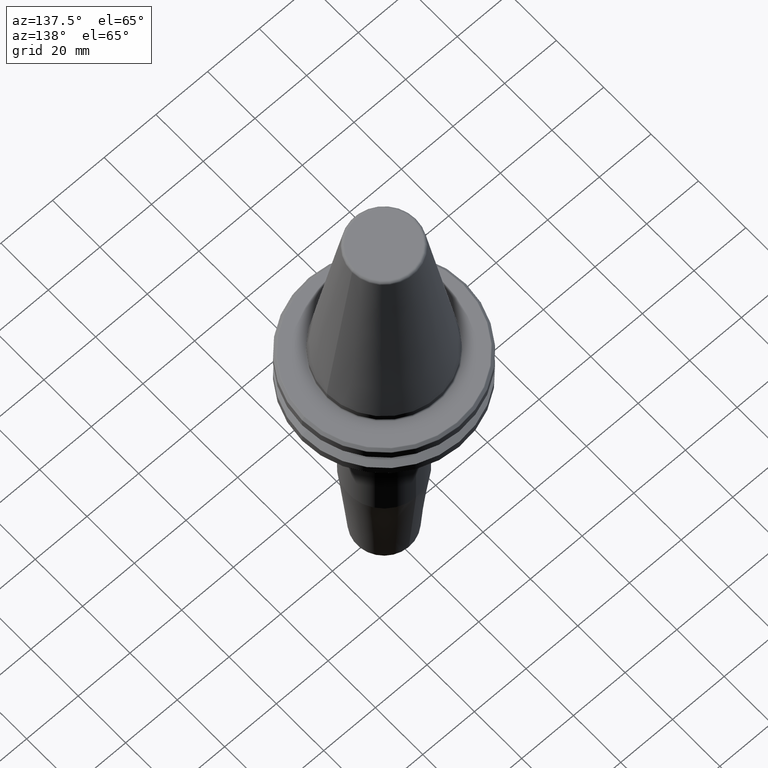
[diagram: clean part render]
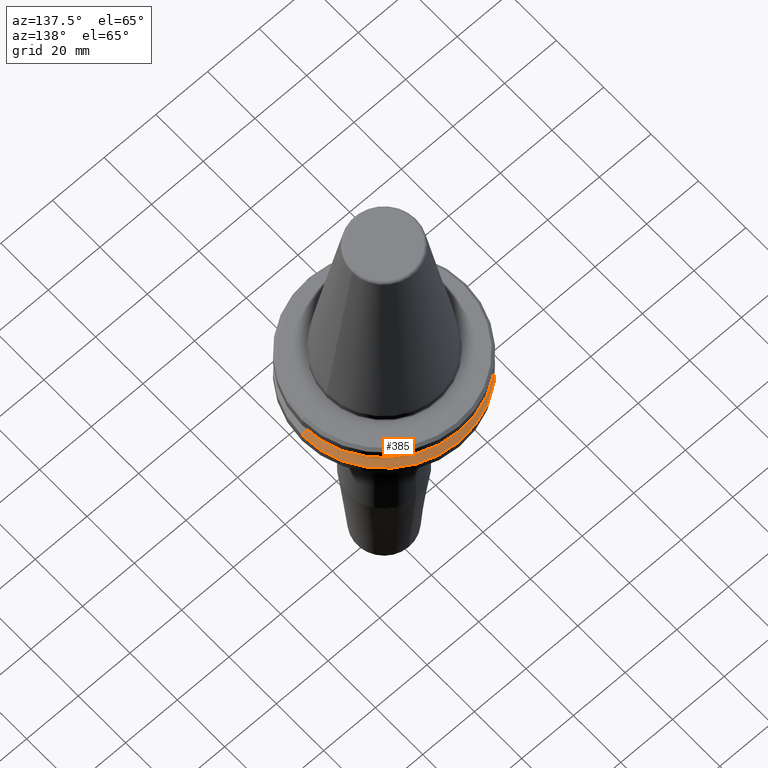
[diagram: same view with one face highlighted and labeled with its STEP entity id]
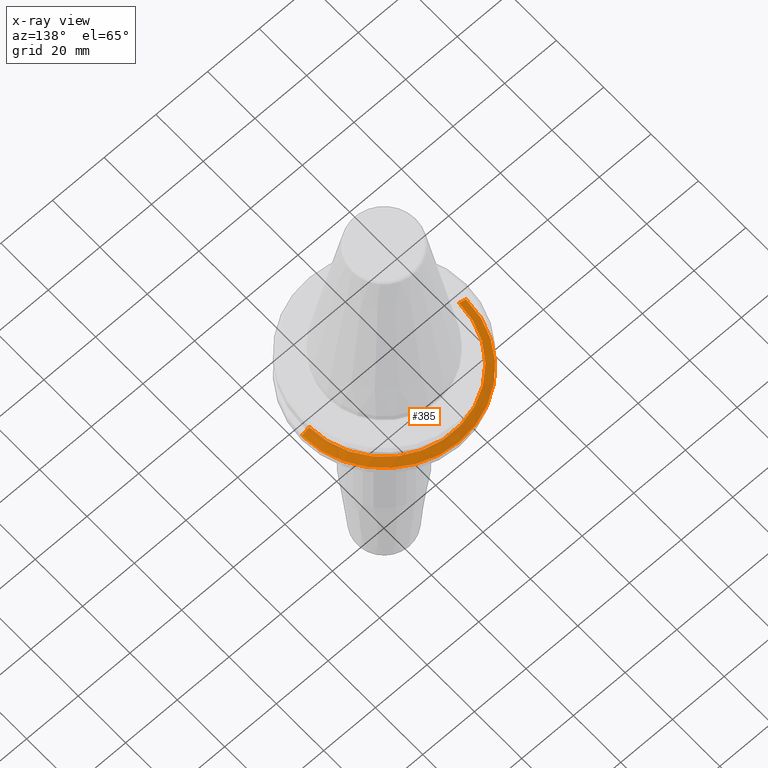
[diagram: x-ray of the same camera — body ghosted, the highlighted face saturated]
A machine part, auxiliary view. The second image highlights one B-rep face of the part: STEP entity #385.
The next image is the same camera in x-ray: the body ghosted, the highlighted face saturated — about 0% of this face is hidden behind the body in this view.
In plain terms, the highlighted conical surface has half-angle 60 deg.
Its self-contained STEP definition (entity closure, byte-faithful):
#5 = DIRECTION ( 'NONE',  ( -0.8660254037844420400, 0.0000000000000000000, -0.4999999999999943900 ) ) ;
#112 = DIRECTION ( 'NONE',  ( -0.0000000000000000000, -0.0000000000000000000, 1.000000000000000000 ) ) ;
#121 = VECTOR ( 'NONE', #816, 999.9999999999998900 ) ;
#149 = VERTEX_POINT ( 'NONE', #1213 ) ;
#175 = VERTEX_POINT ( 'NONE', #1019 ) ;
#187 = CARTESIAN_POINT ( 'NONE',  ( -28.94089653438085100, 0.0000000000000000000, -13.00000000000001100 ) ) ;
#195 = CIRCLE ( 'NONE', #808, 31.75000000000000000 ) ;
#214 = VECTOR ( 'NONE', #5, 999.9999999999998900 ) ;
#281 = AXIS2_PLACEMENT_3D ( 'NONE', #805, #1078, #1091 ) ;
#311 = AXIS2_PLACEMENT_3D ( 'NONE', #439, #1118, #536 ) ;
#323 = CARTESIAN_POINT ( 'NONE',  ( 0.0000000000000000000, 0.0000000000000000000, -14.62183664205671200 ) ) ;
#384 = VERTEX_POINT ( 'NONE', #1154 ) ;
#385 = ADVANCED_FACE ( 'NONE', ( #757 ), #985, .T. ) ;
#393 = LINE ( 'NONE', #427, #121 ) ;
#427 = CARTESIAN_POINT ( 'NONE',  ( 28.94089653438085100, 3.544237630528423800E-015, -13.00000000000001100 ) ) ;
#439 = CARTESIAN_POINT ( 'NONE',  ( 0.0000000000000000000, 0.0000000000000000000, -13.00000000000001100 ) ) ;
#455 = EDGE_LOOP ( 'NONE', ( #983, #1051, #1057, #542 ) ) ;
#486 = LINE ( 'NONE', #187, #214 ) ;
#536 = DIRECTION ( 'NONE',  ( 1.000000000000000000, 0.0000000000000000000, 0.0000000000000000000 ) ) ;
#542 = ORIENTED_EDGE ( 'NONE', *, *, #700, .F. ) ;
#601 = EDGE_CURVE ( 'NONE', #149, #175, #195, .T. ) ;
#700 = EDGE_CURVE ( 'NONE', #384, #175, #486, .T. ) ;
#709 = VERTEX_POINT ( 'NONE', #1073 ) ;
#757 = FACE_OUTER_BOUND ( 'NONE', #455, .T. ) ;
#805 = CARTESIAN_POINT ( 'NONE',  ( 0.0000000000000000000, 0.0000000000000000000, -13.00000000000001100 ) ) ;
#808 = AXIS2_PLACEMENT_3D ( 'NONE', #323, #112, #1176 ) ;
#816 = DIRECTION ( 'NONE',  ( 0.8660254037844420400, 1.060575238724911000E-016, -0.4999999999999943900 ) ) ;
#834 = CIRCLE ( 'NONE', #311, 28.94089653438085100 ) ;
#843 = EDGE_CURVE ( 'NONE', #709, #149, #393, .T. ) ;
#983 = ORIENTED_EDGE ( 'NONE', *, *, #1123, .F. ) ;
#985 = CONICAL_SURFACE ( 'NONE', #281, 28.94089653438085100, 1.047197551196604300 ) ;
#1019 = CARTESIAN_POINT ( 'NONE',  ( -31.75000000000000000, 3.888253587292846500E-015, -14.62183664205671200 ) ) ;
#1051 = ORIENTED_EDGE ( 'NONE', *, *, #843, .T. ) ;
#1057 = ORIENTED_EDGE ( 'NONE', *, *, #601, .T. ) ;
#1073 = CARTESIAN_POINT ( 'NONE',  ( 28.94089653438085100, 3.716245608910634800E-015, -13.00000000000001100 ) ) ;
#1078 = DIRECTION ( 'NONE',  ( 0.0000000000000000000, 0.0000000000000000000, -1.000000000000000000 ) ) ;
#1091 = DIRECTION ( 'NONE',  ( -1.000000000000000000, 0.0000000000000000000, 0.0000000000000000000 ) ) ;
#1118 = DIRECTION ( 'NONE',  ( -0.0000000000000000000, -0.0000000000000000000, 1.000000000000000000 ) ) ;
#1123 = EDGE_CURVE ( 'NONE', #709, #384, #834, .T. ) ;
#1154 = CARTESIAN_POINT ( 'NONE',  ( -28.94089653438085100, 0.0000000000000000000, -13.00000000000001100 ) ) ;
#1176 = DIRECTION ( 'NONE',  ( 1.000000000000000000, 0.0000000000000000000, 0.0000000000000000000 ) ) ;
#1213 = CARTESIAN_POINT ( 'NONE',  ( 31.75000000000000000, 0.0000000000000000000, -14.62183664205671200 ) ) ;